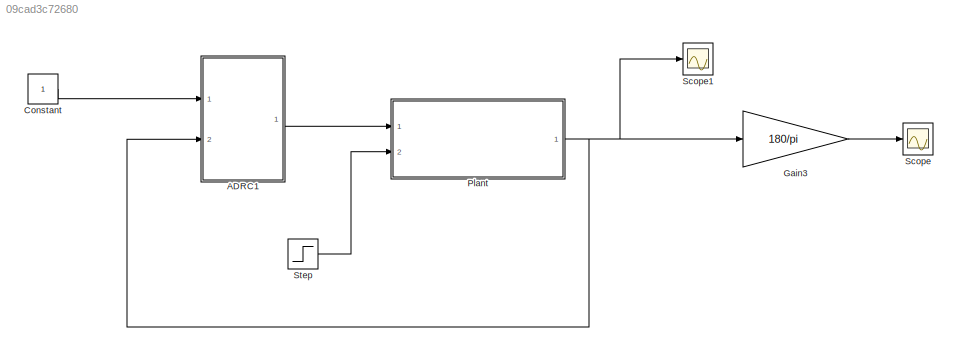
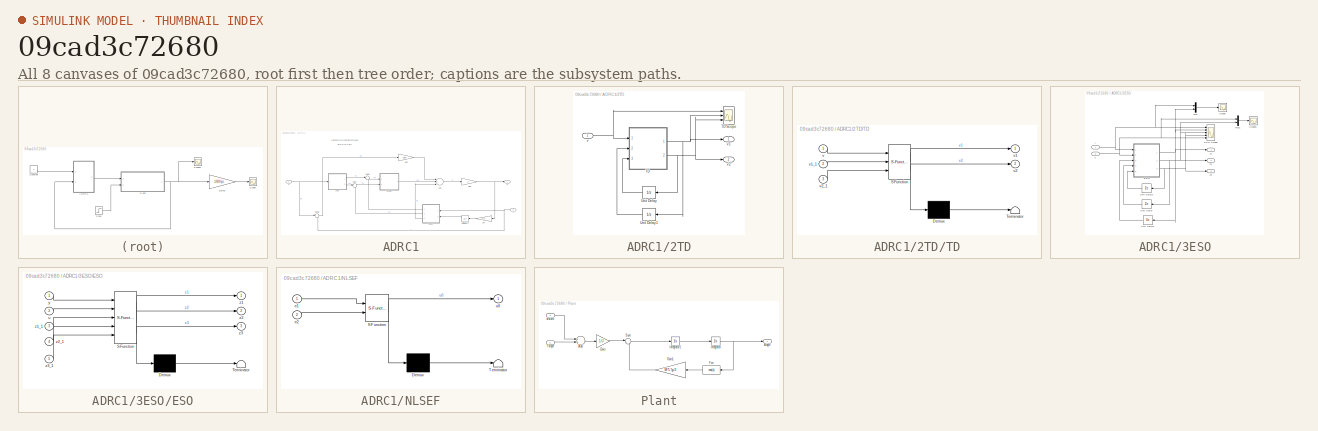
[diagram: thumbnail index - all 8 canvases of the model, root first then tree order]
MODEL slx_09cad3c72680
KIND model
CONFIG AbsTol = auto
CONFIG EnableMultiTasking = off
CONFIG FixedStep = 0.001
CONFIG MaxStep = auto
CONFIG MinStep = auto
CONFIG RelTol = 1e-3
CONFIG SampleTimeConstraint = Unconstrained
CONFIG Solver = ode1
CONFIG SolverName = ode1
CONFIG StartTime = 0.0
CONFIG StopTime = 2
WORKSPACE source: MAT-file member
WORKSPACE J = 2
BLOCK [SubSystem] ADRC1
  Ports = [2, 1]
  RequestExecContextInheritance = off
BLOCK [Gain] ADRC1/1//b0
  Gain = J
  OutDataTypeStr = Inherit: Inherit via internal rule
  ParamDataTypeStr = Inherit: Inherit via internal rule
  SaturateOnIntegerOverflow = off
BLOCK [Gain] ADRC1/1//b1
  Gain = -100
  OutDataTypeStr = Inherit: Inherit via internal rule
  ParamDataTypeStr = Inherit: Inherit via internal rule
  SaturateOnIntegerOverflow = off
BLOCK [SubSystem] ADRC1/2TD
  Ports = [1, 2]
  RequestExecContextInheritance = off
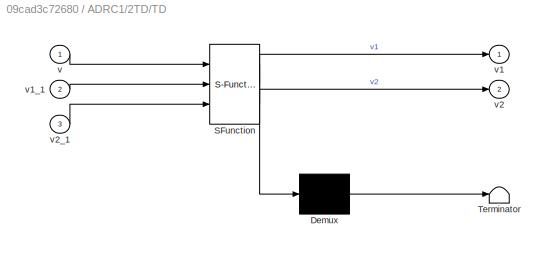
BLOCK [SubSystem] ADRC1/2TD/TD
  ErrorFcn = Stateflow.Translate.translate
  PermitHierarchicalResolution = ExplicitOnly
  Ports = [3, 2]
  RequestExecContextInheritance = off
  SFBlockType = MATLAB Function
  TreatAsAtomicUnit = on
BLOCK [Scope] ADRC1/2TD/TD Scope
  Floating = off
  NumInputPorts = 3
  Ports = [3]
  ScopeSpecificationString = Simulink.scopes.TimeScopeBlockCfg('CurrentConfiguration', extmgr.ConfigurationSet(extmgr.Configuration('Core','General UI',true),extmgr.Configuration('Core','Source UI',true),extmgr.Configuration('Sources','WiredSimulink',true,'DataLoggingVariableName','ScopeData1','DataLoggingSaveFormat','StructureWithTime','DataLoggingLimitDataPoints',true,'DataLoggingDecimation','1','DataLoggingDecimateData',tr...<+3011ch>
BLOCK [Demux] ADRC1/2TD/TD/ Demux 
  Outputs = 1
  Ports = [1, 1]
BLOCK [S-Function] ADRC1/2TD/TD/ SFunction 
  EnableBusSupport = on
  FunctionName = sf_sfun
  PortCounts = [3 3]
  Ports = [3, 3]
  SFcnIsStateOwnerBlock = off
  SFunctionDeploymentMode = off
  Tag = Stateflow S-Function V02_pendulum 1
BLOCK [Terminator] ADRC1/2TD/TD/ Terminator 
BLOCK [Inport] ADRC1/2TD/TD/v
  IconDisplay = Port number
BLOCK [Outport] ADRC1/2TD/TD/v1
  IconDisplay = Port number
BLOCK [Inport] ADRC1/2TD/TD/v1_1
  IconDisplay = Port number
  Port = 2
BLOCK [Outport] ADRC1/2TD/TD/v2
  IconDisplay = Port number
  Port = 2
BLOCK [Inport] ADRC1/2TD/TD/v2_1
  IconDisplay = Port number
  Port = 3
BLOCK [UnitDelay] ADRC1/2TD/Unit Delay
  SampleTime = -1
BLOCK [UnitDelay] ADRC1/2TD/Unit Delay1
  SampleTime = -1
BLOCK [Inport] ADRC1/2TD/v
  IconDisplay = Port number
BLOCK [Outport] ADRC1/2TD/v1
  IconDisplay = Port number
BLOCK [Outport] ADRC1/2TD/v2
  IconDisplay = Port number
  Port = 2
BLOCK [SubSystem] ADRC1/3ESO
  Ports = [2, 3]
  RequestExecContextInheritance = off
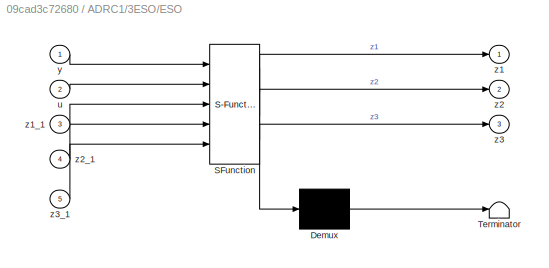
BLOCK [SubSystem] ADRC1/3ESO/ESO
  ErrorFcn = Stateflow.Translate.translate
  PermitHierarchicalResolution = ExplicitOnly
  Ports = [5, 3]
  RequestExecContextInheritance = off
  SFBlockType = MATLAB Function
  TreatAsAtomicUnit = on
BLOCK [Scope] ADRC1/3ESO/ESO Scope
  Floating = off
  NumInputPorts = 5
  Ports = [5]
  ScopeSpecificationString = Simulink.scopes.TimeScopeBlockCfg('CurrentConfiguration', extmgr.ConfigurationSet(extmgr.Configuration('Core','General UI',true),extmgr.Configuration('Core','Source UI',true),extmgr.Configuration('Sources','WiredSimulink',true,'DataLoggingVariableName','ScopeData2','DataLoggingSaveFormat','StructureWithTime','DataLoggingLimitDataPoints',true,'DataLoggingDecimation','1','DataLoggingDecimateData',tr...<+4418ch>
BLOCK [Demux] ADRC1/3ESO/ESO/ Demux 
  Outputs = 1
  Ports = [1, 1]
BLOCK [S-Function] ADRC1/3ESO/ESO/ SFunction 
  EnableBusSupport = on
  FunctionName = sf_sfun
  PortCounts = [5 4]
  Ports = [5, 4]
  SFcnIsStateOwnerBlock = off
  SFunctionDeploymentMode = off
  Tag = Stateflow S-Function V02_pendulum 5
BLOCK [Terminator] ADRC1/3ESO/ESO/ Terminator 
BLOCK [Inport] ADRC1/3ESO/ESO/u
  IconDisplay = Port number
  Port = 2
BLOCK [Inport] ADRC1/3ESO/ESO/y
  IconDisplay = Port number
BLOCK [Outport] ADRC1/3ESO/ESO/z1
  IconDisplay = Port number
BLOCK [Inport] ADRC1/3ESO/ESO/z1_1
  IconDisplay = Port number
  Port = 3
BLOCK [Outport] ADRC1/3ESO/ESO/z2
  IconDisplay = Port number
  Port = 2
BLOCK [Inport] ADRC1/3ESO/ESO/z2_1
  IconDisplay = Port number
  Port = 4
BLOCK [Outport] ADRC1/3ESO/ESO/z3
  IconDisplay = Port number
  Port = 3
BLOCK [Inport] ADRC1/3ESO/ESO/z3_1
  IconDisplay = Port number
  Port = 5
BLOCK [Mux] ADRC1/3ESO/Mux
  DisplayOption = bar
  Inputs = 2
  Ports = [2, 1]
BLOCK [Mux] ADRC1/3ESO/Mux1
  DisplayOption = bar
  Inputs = 2
  Ports = [2, 1]
BLOCK [Scope] ADRC1/3ESO/Scope
  Floating = off
  NumInputPorts = 1
  Ports = [1]
  ScopeSpecificationString = Simulink.scopes.TimeScopeBlockCfg('CurrentConfiguration', extmgr.ConfigurationSet(extmgr.Configuration('Core','General UI',true),extmgr.Configuration('Core','Source UI',true),extmgr.Configuration('Sources','WiredSimulink',true,'DataLoggingVariableName','ScopeData3'),extmgr.Configuration('Visuals','Time Domain',true,'SerializedDisplays',{struct('MinYLimReal','-0.1672','MaxYLimReal','1.50482','YLabe...<+1367ch>
BLOCK [Scope] ADRC1/3ESO/Scope1
  Floating = off
  NumInputPorts = 1
  Ports = [1]
  ScopeSpecificationString = Simulink.scopes.TimeScopeBlockCfg('CurrentConfiguration', extmgr.ConfigurationSet(extmgr.Configuration('Core','General UI',true),extmgr.Configuration('Core','Source UI',true),extmgr.Configuration('Sources','WiredSimulink',true,'DataLoggingVariableName','ScopeData4'),extmgr.Configuration('Visuals','Time Domain',true,'SerializedDisplays',{struct('MinYLimReal','-5.23026','MaxYLimReal','22.33276','YLa...<+1373ch>
BLOCK [UnitDelay] ADRC1/3ESO/Unit Delay
  SampleTime = -1
BLOCK [UnitDelay] ADRC1/3ESO/Unit Delay1
  SampleTime = -1
BLOCK [UnitDelay] ADRC1/3ESO/Unit Delay2
  SampleTime = -1
BLOCK [Inport] ADRC1/3ESO/u
  IconDisplay = Port number
  Port = 2
BLOCK [Inport] ADRC1/3ESO/y
  IconDisplay = Port number
BLOCK [Outport] ADRC1/3ESO/z1
  IconDisplay = Port number
BLOCK [Outport] ADRC1/3ESO/z2
  IconDisplay = Port number
  Port = 2
BLOCK [Outport] ADRC1/3ESO/z3
  IconDisplay = Port number
  Port = 3
BLOCK [Sum] ADRC1/Add
  InputSameDT = off
  Inputs = ++-
  OutDataTypeStr = Inherit: Inherit via internal rule
  Ports = [3, 1]
  SaturateOnIntegerOverflow = off
BLOCK [SubSystem] ADRC1/NLSEF
  ErrorFcn = Stateflow.Translate.translate
  PermitHierarchicalResolution = ExplicitOnly
  Ports = [2, 1]
  RequestExecContextInheritance = off
  SFBlockType = MATLAB Function
  TreatAsAtomicUnit = on
BLOCK [Demux] ADRC1/NLSEF/ Demux 
  Outputs = 1
  Ports = [1, 1]
BLOCK [S-Function] ADRC1/NLSEF/ SFunction 
  EnableBusSupport = on
  FunctionName = sf_sfun
  PortCounts = [2 2]
  Ports = [2, 2]
  SFcnIsStateOwnerBlock = off
  SFunctionDeploymentMode = off
  Tag = Stateflow S-Function V02_pendulum 3
BLOCK [Terminator] ADRC1/NLSEF/ Terminator 
BLOCK [Inport] ADRC1/NLSEF/e1
  IconDisplay = Port number
BLOCK [Inport] ADRC1/NLSEF/e2
  IconDisplay = Port number
  Port = 2
BLOCK [Outport] ADRC1/NLSEF/u0
  IconDisplay = Port number
BLOCK [Sum] ADRC1/Sum
  IconShape = round
  InputSameDT = off
  Inputs = |+-
  OutDataTypeStr = Inherit: Inherit via internal rule
  Ports = [2, 1]
  SaturateOnIntegerOverflow = off
BLOCK [Sum] ADRC1/Sum1
  IconShape = round
  InputSameDT = off
  Inputs = |+-
  OutDataTypeStr = Inherit: Inherit via internal rule
  Ports = [2, 1]
  SaturateOnIntegerOverflow = off
BLOCK [Sum] ADRC1/Sum3
  IconShape = round
  InputSameDT = off
  Inputs = |+-
  OutDataTypeStr = Inherit: Inherit via internal rule
  Ports = [2, 1]
  SaturateOnIntegerOverflow = off
BLOCK [UnitDelay] ADRC1/Unit Delay2
  SampleTime = -1
BLOCK [Gain] ADRC1/b0
  Gain = 1/J
  OutDataTypeStr = Inherit: Inherit via internal rule
  ParamDataTypeStr = Inherit: Inherit via internal rule
  SaturateOnIntegerOverflow = off
BLOCK [Outport] ADRC1/u
  IconDisplay = Port number
BLOCK [Inport] ADRC1/v
  IconDisplay = Port number
BLOCK [Inport] ADRC1/y
  IconDisplay = Port number
  Port = 2
BLOCK [Constant] Constant
BLOCK [Gain] Gain3
  Gain = 180/pi
  OutDataTypeStr = Inherit: Inherit via internal rule
  ParamDataTypeStr = Inherit: Inherit via internal rule
  SaturateOnIntegerOverflow = off
BLOCK [SubSystem] Plant
  Ports = [2, 1]
  RequestExecContextInheritance = off
BLOCK [Sum] Plant/Add
  InputSameDT = off
  OutDataTypeStr = Inherit: Inherit via internal rule
  Ports = [2, 1]
  SaturateOnIntegerOverflow = off
BLOCK [Outport] Plant/Angle
  IconDisplay = Port number
BLOCK [Fcn] Plant/Fcn
  Expr = cos(u)
BLOCK [Gain] Plant/Gain
  Gain = 1/J
  OutDataTypeStr = Inherit: Inherit via internal rule
  ParamDataTypeStr = Inherit: Inherit via internal rule
  SaturateOnIntegerOverflow = off
BLOCK [Gain] Plant/Gain1
  Gain = M*L*g/J
  OutDataTypeStr = Inherit: Inherit via internal rule
  ParamDataTypeStr = Inherit: Inherit via internal rule
  SaturateOnIntegerOverflow = off
BLOCK [Integrator] Plant/Integrator
  Ports = [1, 1]
BLOCK [Integrator] Plant/Integrator1
  Ports = [1, 1]
BLOCK [Sum] Plant/Sum
  IconShape = round
  InputSameDT = off
  Inputs = |+-
  OutDataTypeStr = Inherit: Inherit via internal rule
  Ports = [2, 1]
  SaturateOnIntegerOverflow = off
BLOCK [Inport] Plant/Torque
  IconDisplay = Port number
BLOCK [Inport] Plant/disturb 
  IconDisplay = Port number
  Port = 2
BLOCK [Scope] Scope
  Floating = off
  NumInputPorts = 1
  Ports = [1]
  ScopeSpecificationString = Simulink.scopes.TimeScopeBlockCfg('CurrentConfiguration', extmgr.ConfigurationSet(extmgr.Configuration('Core','General UI',true),extmgr.Configuration('Core','Source UI',true),extmgr.Configuration('Sources','WiredSimulink',true),extmgr.Configuration('Visuals','Time Domain',true,'SerializedDisplays',{struct('MinYLimReal','55.29759','MaxYLimReal','60.05608','YLabelReal','','MinYLimMag','55.29759','Ma...<+1404ch>
BLOCK [Scope] Scope1
  Floating = off
  NumInputPorts = 1
  Ports = [1]
  ScopeSpecificationString = Simulink.scopes.TimeScopeBlockCfg('CurrentConfiguration', extmgr.ConfigurationSet(extmgr.Configuration('Core','General UI',true),extmgr.Configuration('Core','Source UI',true),extmgr.Configuration('Sources','WiredSimulink',true,'DataLoggingVariableName','ScopeData1'),extmgr.Configuration('Visuals','Time Domain',true,'SerializedDisplays',{struct('MinYLimReal','-0.12665','MaxYLimReal','1.13988','YLab...<+1393ch>
BLOCK [Step] Step
  After = 600
  SampleTime = 0
ANNOTATION ADRC1: Active Disturbance Rejection Control Mold where u=u0+z3/b0
NET ADRC1/1//b0:1 -> ADRC1/b0:1, ADRC1/u:1
LINE ADRC1/1//b1:1 -> ADRC1/Add:1
NET ADRC1/2TD/TD:1 -> ADRC1/2TD/TD Scope:2, ADRC1/2TD/Unit Delay1:1, ADRC1/2TD/v1:1
NET ADRC1/2TD/TD:2 -> ADRC1/2TD/TD Scope:3, ADRC1/2TD/Unit Delay:1, ADRC1/2TD/v2:1
LINE ADRC1/2TD/Unit Delay1:1 -> ADRC1/2TD/TD:2
LINE ADRC1/2TD/Unit Delay:1 -> ADRC1/2TD/TD:3
NET ADRC1/2TD/v:1 -> ADRC1/2TD/TD Scope:1, ADRC1/2TD/TD:1
LINE ADRC1/2TD:1 -> ADRC1/Sum1:1
LINE ADRC1/2TD:2 -> ADRC1/Sum:1
NET ADRC1/3ESO/ESO:1 -> ADRC1/3ESO/ESO Scope:2, ADRC1/3ESO/Mux:2, ADRC1/3ESO/Unit Delay1:1, ADRC1/3ESO/z1:1
NET ADRC1/3ESO/ESO:2 -> ADRC1/3ESO/ESO Scope:3, ADRC1/3ESO/Mux1:2, ADRC1/3ESO/Unit Delay:1, ADRC1/3ESO/z2:1
NET ADRC1/3ESO/ESO:3 -> ADRC1/3ESO/ESO Scope:4, ADRC1/3ESO/Unit Delay2:1, ADRC1/3ESO/z3:1
LINE ADRC1/3ESO/Mux1:1 -> ADRC1/3ESO/Scope1:1
LINE ADRC1/3ESO/Mux:1 -> ADRC1/3ESO/Scope:1
LINE ADRC1/3ESO/Unit Delay1:1 -> ADRC1/3ESO/ESO:3
LINE ADRC1/3ESO/Unit Delay2:1 -> ADRC1/3ESO/ESO:5
LINE ADRC1/3ESO/Unit Delay:1 -> ADRC1/3ESO/ESO:4
NET ADRC1/3ESO/u:1 -> ADRC1/3ESO/ESO Scope:5, ADRC1/3ESO/ESO:2, ADRC1/3ESO/Mux1:1
NET ADRC1/3ESO/y:1 -> ADRC1/3ESO/ESO Scope:1, ADRC1/3ESO/ESO:1, ADRC1/3ESO/Mux:1
LINE ADRC1/3ESO:1 -> ADRC1/Sum1:2
LINE ADRC1/3ESO:2 -> ADRC1/Sum:2
LINE ADRC1/3ESO:3 -> ADRC1/Add:3
LINE ADRC1/Add:1 -> ADRC1/1//b0:1
LINE ADRC1/NLSEF:1 -> ADRC1/Add:2
LINE ADRC1/Sum1:1 -> ADRC1/NLSEF:1
LINE ADRC1/Sum3:1 -> ADRC1/1//b1:1
LINE ADRC1/Sum:1 -> ADRC1/NLSEF:2
LINE ADRC1/Unit Delay2:1 -> ADRC1/3ESO:2
LINE ADRC1/b0:1 -> ADRC1/Unit Delay2:1
NET ADRC1/v:1 -> ADRC1/2TD:1, ADRC1/Sum3:1
NET ADRC1/y:1 -> ADRC1/3ESO:1, ADRC1/Sum3:2
LINE ADRC1:1 -> Plant:1
LINE Constant:1 -> ADRC1:1
LINE Gain3:1 -> Scope:1
LINE Plant/Add:1 -> Plant/Gain:1
LINE Plant/Fcn:1 -> Plant/Gain1:1
LINE Plant/Gain1:1 -> Plant/Sum:2
LINE Plant/Gain:1 -> Plant/Sum:1
LINE Plant/Integrator1:1 -> Plant/Integrator:1
NET Plant/Integrator:1 -> Plant/Angle:1, Plant/Fcn:1
LINE Plant/Sum:1 -> Plant/Integrator1:1
LINE Plant/Torque:1 -> Plant/Add:2
LINE Plant/disturb :1 -> Plant/Add:1
NET Plant:1 -> ADRC1:2, Gain3:1, Scope1:1
LINE Step:1 -> Plant:2
note: NET lines group one-source signal fan-out (src -> all destinations, sorted); 1:1 wires keep LINE
CHART ADRC1/2TD/TD states=1 transitions=1
  STATE_LABEL 'eML_blk_kernel()'
  STATE_LABEL 'SCRIPT:\nfunction [v1,v2] = fcn(v, v1_1,v2_1)\n% This block supports the Embedded MATLAB subset.\n% See the help menu for details. \n\n%parameter\nr=700;\nh=0.001;\nk=20;\nh0=k*h;\n\n%function fhan(vv1_1-v,v2_1,r,h0)\nd=r*power(h0,2);\na0=h0*v2_1;\ny=v1_1-v+a0;             \na1=power(d*(d+8*abs(y)),0.5);\na2=a0+sign(y)*(a1-d)/2;\nsy=(sign(y+d)-sign(y-d))/2;\na=(a0+y-a2)*sy+a2;\nsa=(sign(a+d)-sign(a-d))/2;\nfhan=-r*(a...<+78ch>'
CHART ADRC1/NLSEF states=1 transitions=1
  STATE_LABEL 'eML_blk_kernel()'
  STATE_LABEL 'SCRIPT:\nfunction u0 = fcn(e1,e2)\n% This block supports the Embedded MATLAB subset.\n% See the help menu for details. \n\n% %The first method:u0=k1*fal1(e1,alpha1,delta)+k2*fal2(e2,alpha2,delta)\n% %0<alpha1<1<alpha2\n% % %parameter\n% alpha1=0.2;\n% alpha2=1.1;\n% delta=0.5;\n% k1=5;\n% k2=1;\n% s1 = (sign(e1+delta)-sign(e1-delta))/2;\n% s2 = (sign(e2+delta)-sign(e2-delta))/2;\n% fal1 = e1*s1/power(delta,(1-al...<+723ch>'
CHART ADRC1/3ESO/ESO states=1 transitions=1
  STATE_LABEL 'eML_blk_kernel()'
  STATE_LABEL 'SCRIPT:\nfunction [z1,z2,z3] = fcn(y,u,z1_1,z2_1,z3_1)\n% This block supports the Embedded MATLAB subset.\n% See the help menu for details. \n\n%parameter\nh = 0.001;\n% k=1;\nk=10;\ndelta = k*h;\nbeta01 = 1/h;\nbeta02 = 1/(1.6*power(h,1.5));\nbeta03 = 1/(8.6*power(h,2.2));\n% beta01 = 1/h;\n% beta02 = 1/(3*power(h,2));\n% beta03 = 1/(20*power(h,3));\n% beta01 = 1/h;\n% beta02 = 1/(3*power(h,2));\n% beta03 = 1/(pow...<+389ch>'
